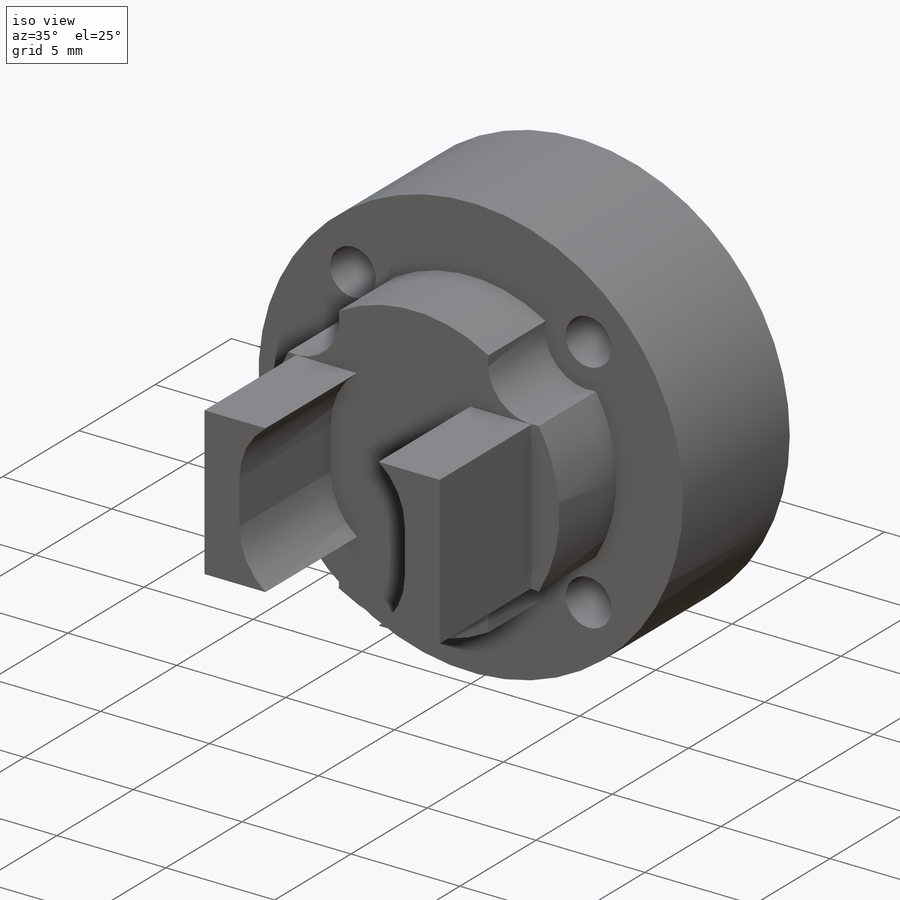
[diagram: iso view]
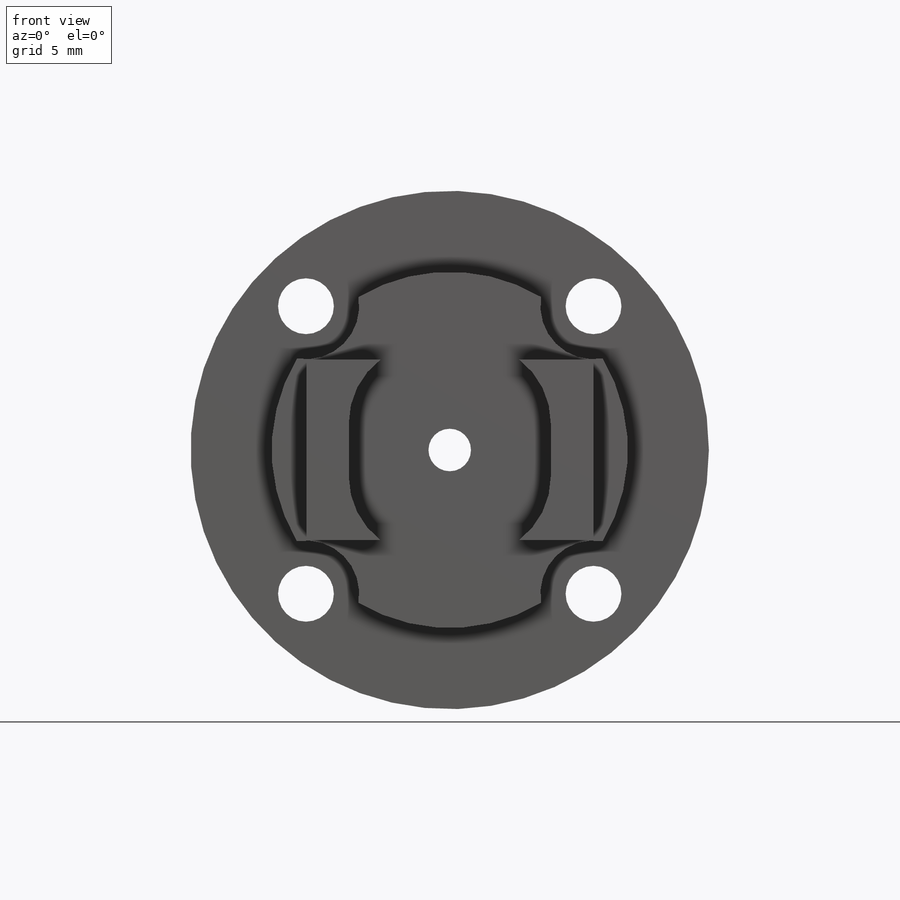
[diagram: front view]
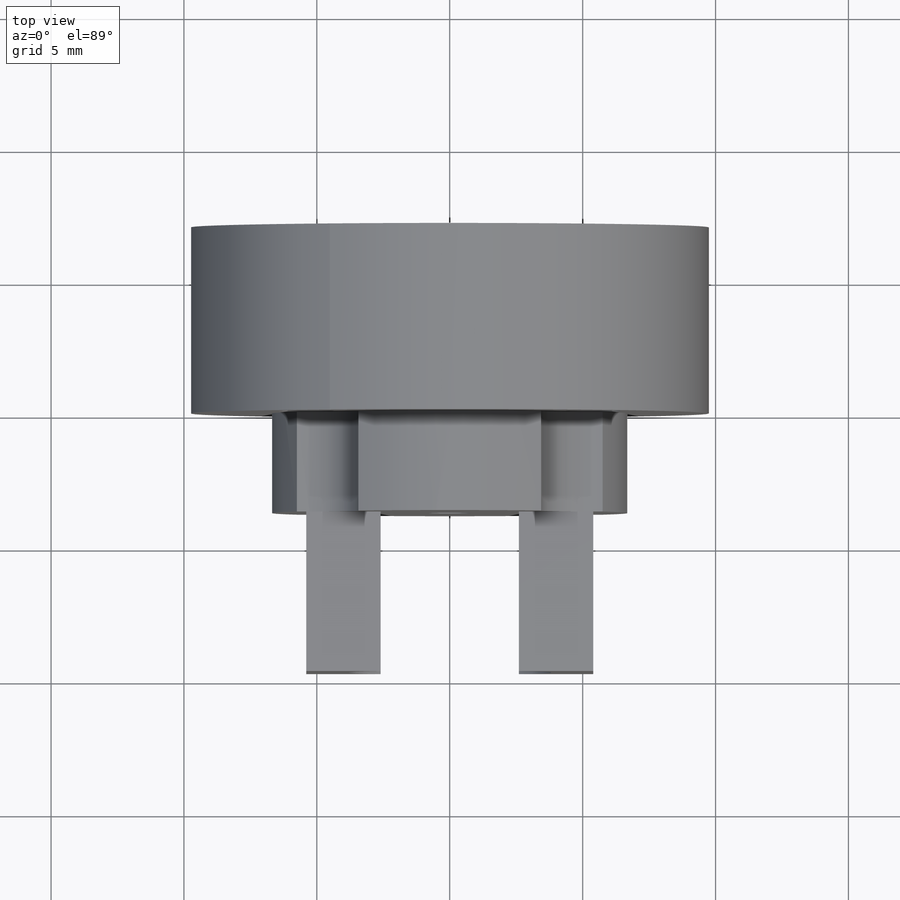
[diagram: top view]
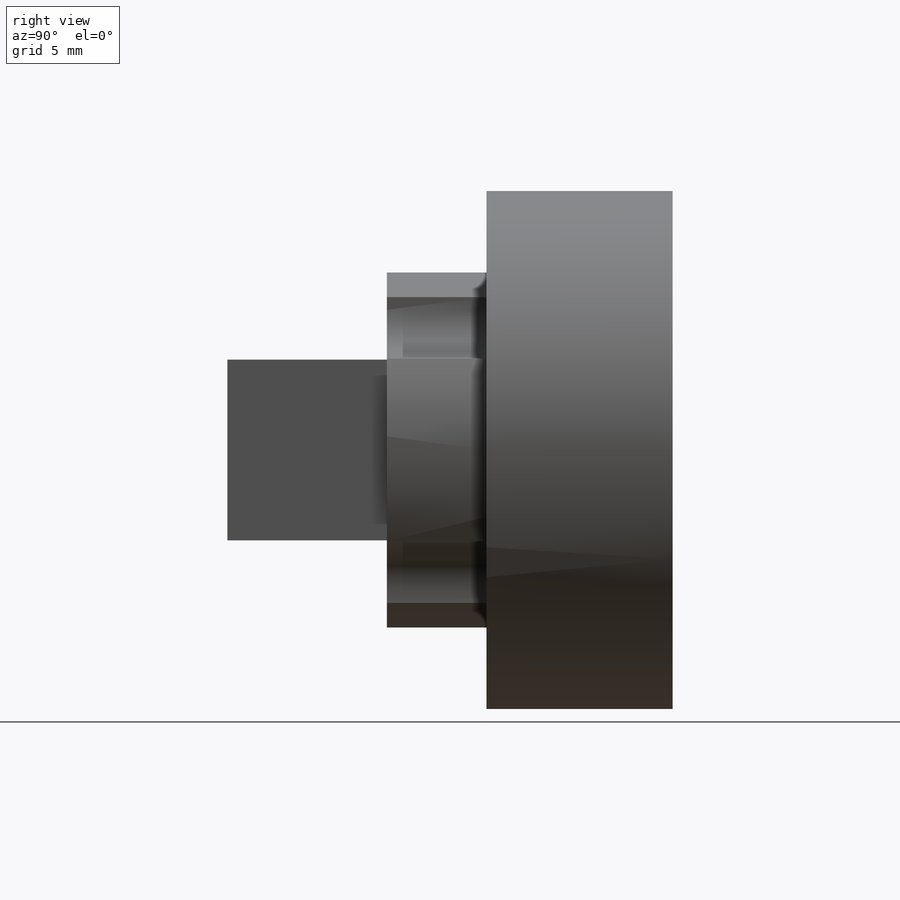
[diagram: right view]
SOLIDWORKS PART (.sldprt)
format: sldprt  version: not decoded by parser v0  size: 313,856 bytes
history: native  units: mm
features: sketch x7, plane x3, extrude x3, cut_extrude x2, material x1, chamfer x1, hole x1, thread x1 (+9 scaffold rows collapsed)
feature tree (28):
  scaffold x9  (default folders/planes/origin — collapsed)
  material  "3.1325 (EN-AW 2017A)"
  plane  "Ebene vorne"
  plane  "Ebene oben"
  plane  "Ebene rechts"
  sketch  "Skizze1"  dims[c1.D1=7.1mm c1.D2=13.4mm c1.D3=2.0mm c1.D4=8.0mm c2.D3=19.5mm]
  extrude  "Aufsatz-Linear austragen1"  Depth=3.75mm
  extrude  "Aufsatz-Linear austragen2"  [1 undecoded]
  sketch  "Skizze1<7>"  dims[D1=7.0mm]
  sketch  "Skizze5"  dims[c1.D1=2.1mm c1.D4=4.0mm c1.D2=15.3mm c1.D3=20.0mm c2.D3=45.0deg]
  cut_extrude  "Schnitt-Linear austragen1"  [1 undecoded]
  cut_extrude  "Schnitt-Linear austragen2"  [1 undecoded]
  sketch  "Skizze5<3>"
  chamfer  "Fase1"  Distance=0.3mm Angle=45deg
  sketch  "Skizze7"  dims[c1.D1=7.6mm c1.D4=3.0mm c2.D1=1.6mm c2.D2=10.8mm c2.D3=6.8mm c3.D1=1.6mm c3.D2=7.6mm c3.D5=2.0mm]
  extrude  "Aufsatz-Linear austragen4"  Depth=6mm
  hole  "M2 Gewindebohrung1"  Diameter=1.6mm Depth=10.75mm
  sketch  "Skizze9"
  sketch  "Skizze8"  dims[hole-wizard template sketch: 60 standard entries collapsed; hole parameters kept: c18.Bohrungstiefe=10.75mm]
  thread  "Bohrungsgewinde3"  Diameter=7.75mm  [1 undecoded]
decode coverage: 10 of 15 modeling features carry decoded parameters
note: ~ marks probable driven/reference dimensions
note: 4 parameter values undecoded
summary: no parameter record found for 3 features
note: suppression state not decoded; provenance and decode notes live in map.json
